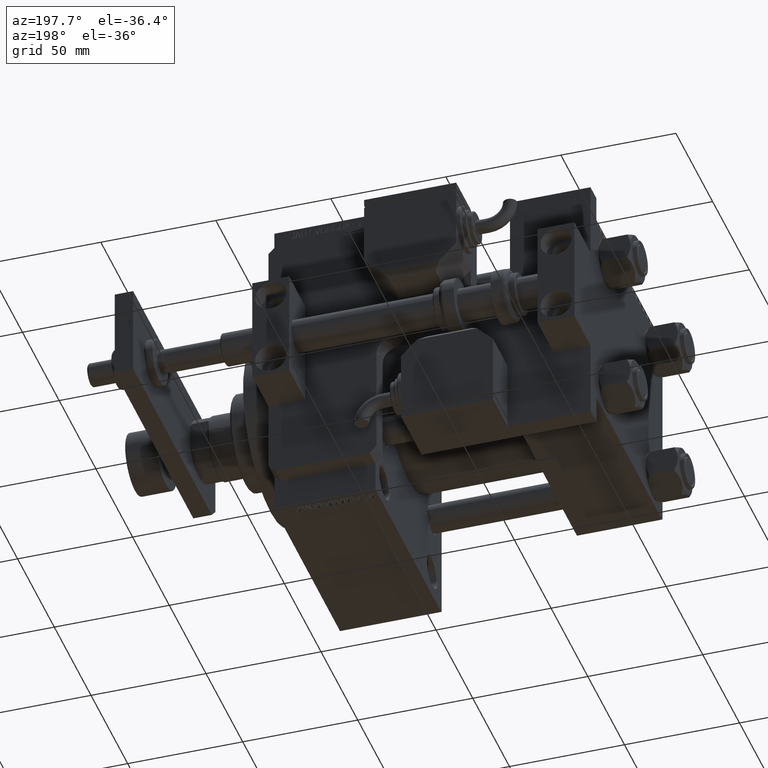
[diagram: clean part render]
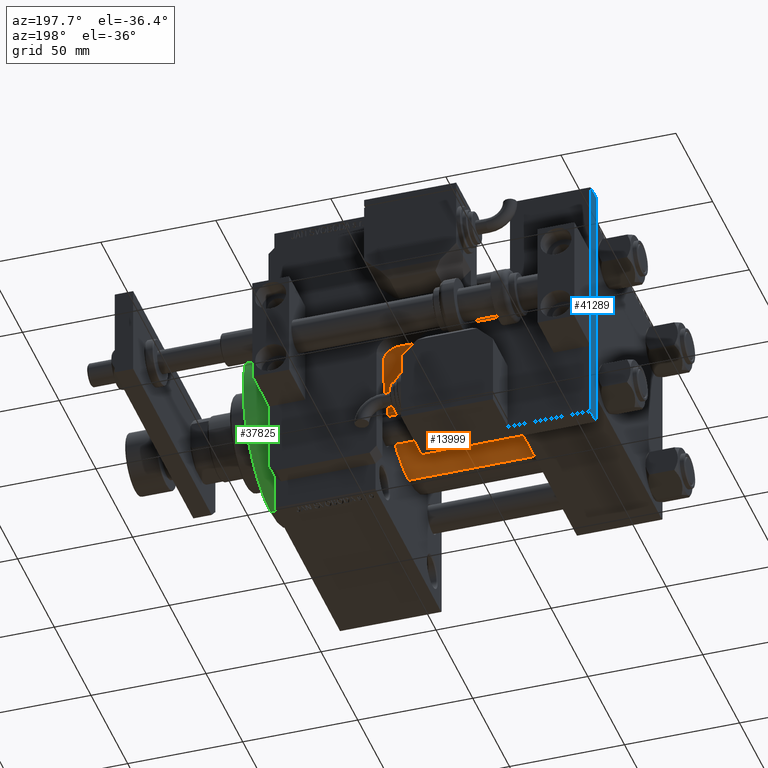
[diagram: same view with three faces highlighted in distinct colors, each labeled with its STEP entity id]
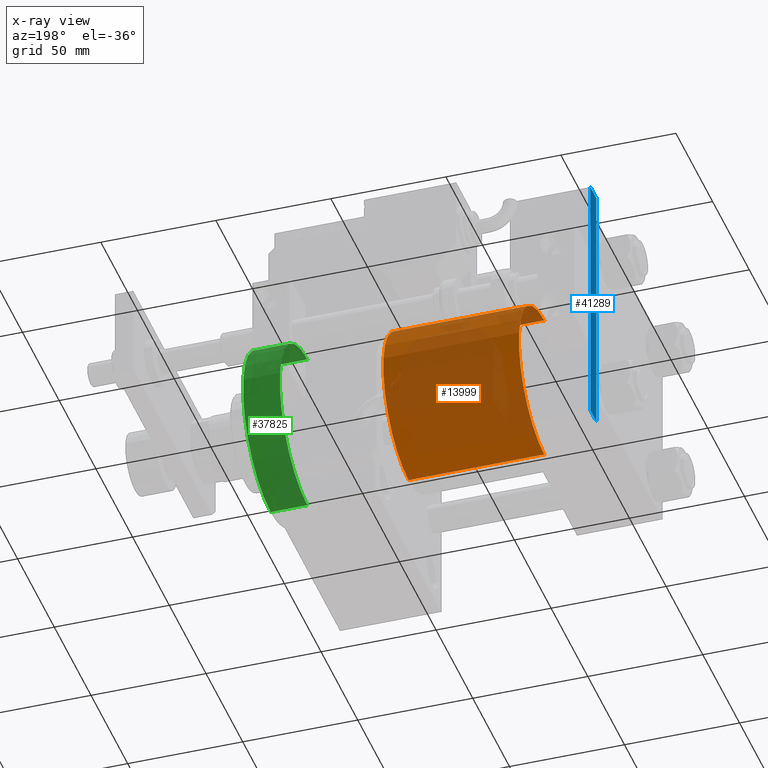
[diagram: x-ray of the same camera — body ghosted, the three highlighted faces saturated]
A machine part, auxiliary view with three faces highlighted in distinct colors.
The next image is the same camera in x-ray (body ghosted, the three faces saturated) — at least one of them is partly hidden behind the body in this view.
Their STEP definitions:

[orange] entity #13999 — the highlighted cylindrical surface (partial cylindrical patch) has radius 34.5 mm, axis along (-1, -0, -0).
#46 = CARTESIAN_POINT ( 'NONE',  ( 37.00000000000000000, -2.602085213965210642E-15, 0.000000000000000000 ) ) ;
#1644 = DIRECTION ( 'NONE',  ( 0.000000000000000000, 0.000000000000000000, 1.000000000000000000 ) ) ;
#2889 = EDGE_CURVE ( 'NONE', #26079, #46371, #37161, .T. ) ;
#3306 = EDGE_LOOP ( 'NONE', ( #26950, #51943, #44778, #4053 ) ) ;
#3994 = DIRECTION ( 'NONE',  ( 0.000000000000000000, 0.000000000000000000, 1.000000000000000000 ) ) ;
#4053 = ORIENTED_EDGE ( 'NONE', *, *, #27494, .F. ) ;
#8041 = CYLINDRICAL_SURFACE ( 'NONE', #26864, 34.50000000000000000 ) ;
#12044 = CARTESIAN_POINT ( 'NONE',  ( 96.00000000000000000, 1.622946243093158675E-15, -34.50000000000000000 ) ) ;
#12447 = DIRECTION ( 'NONE',  ( 1.000000000000000000, -0.000000000000000000, 0.000000000000000000 ) ) ;
#12635 = DIRECTION ( 'NONE',  ( -1.000000000000000000, -0.000000000000000000, -0.000000000000000000 ) ) ;
#13999 = ADVANCED_FACE ( 'NONE', ( #32908 ), #8041, .T. ) ;
#16630 = DIRECTION ( 'NONE',  ( -1.000000000000000000, -0.000000000000000000, -0.000000000000000000 ) ) ;
#19594 = LINE ( 'NONE', #20120, #43347 ) ;
#19862 = VERTEX_POINT ( 'NONE', #28505 ) ;
#20120 = CARTESIAN_POINT ( 'NONE',  ( 96.00000000000000000, -2.602085213965210642E-15, 34.50000000000000000 ) ) ;
#21366 = CARTESIAN_POINT ( 'NONE',  ( 96.00000000000000000, -2.602085213965210642E-15, 0.000000000000000000 ) ) ;
#21763 = AXIS2_PLACEMENT_3D ( 'NONE', #21366, #33801, #46455 ) ;
#25075 = CARTESIAN_POINT ( 'NONE',  ( 96.00000000000000000, -2.602085213965210642E-15, 0.000000000000000000 ) ) ;
#25838 = EDGE_CURVE ( 'NONE', #26079, #19862, #51954, .T. ) ;
#25969 = EDGE_CURVE ( 'NONE', #46371, #27084, #40719, .T. ) ;
#26079 = VERTEX_POINT ( 'NONE', #35911 ) ;
#26864 = AXIS2_PLACEMENT_3D ( 'NONE', #25075, #12635, #3994 ) ;
#26950 = ORIENTED_EDGE ( 'NONE', *, *, #25838, .F. ) ;
#27084 = VERTEX_POINT ( 'NONE', #49099 ) ;
#27403 = VECTOR ( 'NONE', #16630, 1000.000000000000000 ) ;
#27494 = EDGE_CURVE ( 'NONE', #19862, #27084, #19594, .T. ) ;
#28505 = CARTESIAN_POINT ( 'NONE',  ( 96.00000000000000000, -2.602085213965210642E-15, 34.50000000000000000 ) ) ;
#32908 = FACE_OUTER_BOUND ( 'NONE', #3306, .T. ) ;
#33801 = DIRECTION ( 'NONE',  ( 1.000000000000000000, 0.000000000000000000, 0.000000000000000000 ) ) ;
#35911 = CARTESIAN_POINT ( 'NONE',  ( 96.00000000000000000, 1.622946243093158675E-15, -34.50000000000000000 ) ) ;
#37161 = LINE ( 'NONE', #12044, #27403 ) ;
#40719 = CIRCLE ( 'NONE', #41610, 34.50000000000000000 ) ;
#41610 = AXIS2_PLACEMENT_3D ( 'NONE', #46, #12447, #1644 ) ;
#43347 = VECTOR ( 'NONE', #52784, 1000.000000000000000 ) ;
#44778 = ORIENTED_EDGE ( 'NONE', *, *, #25969, .T. ) ;
#46371 = VERTEX_POINT ( 'NONE', #53306 ) ;
#46455 = DIRECTION ( 'NONE',  ( 0.000000000000000000, 0.000000000000000000, -1.000000000000000000 ) ) ;
#49099 = CARTESIAN_POINT ( 'NONE',  ( 37.00000000000000000, -2.602085213965210642E-15, 34.50000000000000000 ) ) ;
#51943 = ORIENTED_EDGE ( 'NONE', *, *, #2889, .T. ) ;
#51954 = CIRCLE ( 'NONE', #21763, 34.50000000000000000 ) ;
#52784 = DIRECTION ( 'NONE',  ( -1.000000000000000000, -0.000000000000000000, -0.000000000000000000 ) ) ;
#53306 = CARTESIAN_POINT ( 'NONE',  ( 37.00000000000000000, 1.622946243093158675E-15, -34.50000000000000000 ) ) ;

[blue] entity #41289 — the highlighted planar face has unit normal (1, 0, 0).
#1924 = CARTESIAN_POINT ( 'NONE',  ( 0.000000000000000000, 115.0000000000000142, 0.000000000000000000 ) ) ;
#2578 = VERTEX_POINT ( 'NONE', #30207 ) ;
#3379 = VECTOR ( 'NONE', #30614, 1000.000000000000000 ) ;
#4125 = VERTEX_POINT ( 'NONE', #43875 ) ;
#6977 = EDGE_CURVE ( 'NONE', #10311, #4125, #50887, .T. ) ;
#9559 = EDGE_CURVE ( 'NONE', #10311, #2578, #50036, .T. ) ;
#9580 = DIRECTION ( 'NONE',  ( 0.000000000000000000, 1.000000000000000000, 0.000000000000000000 ) ) ;
#10311 = VERTEX_POINT ( 'NONE', #30561 ) ;
#11558 = DIRECTION ( 'NONE',  ( 0.000000000000000000, 1.000000000000000000, 0.000000000000000000 ) ) ;
#13327 = FACE_OUTER_BOUND ( 'NONE', #22196, .T. ) ;
#13735 = VECTOR ( 'NONE', #9580, 1000.000000000000000 ) ;
#15876 = ORIENTED_EDGE ( 'NONE', *, *, #6977, .F. ) ;
#15984 = EDGE_CURVE ( 'NONE', #4125, #48248, #22830, .T. ) ;
#18510 = DIRECTION ( 'NONE',  ( -0.000000000000000000, -0.000000000000000000, -1.000000000000000000 ) ) ;
#19679 = LINE ( 'NONE', #32102, #43612 ) ;
#22196 = EDGE_LOOP ( 'NONE', ( #24194, #40318, #15876, #35505 ) ) ;
#22814 = CARTESIAN_POINT ( 'NONE',  ( 0.000000000000000000, 0.000000000000000000, 8.000000000000000000 ) ) ;
#22830 = LINE ( 'NONE', #51975, #49405 ) ;
#24194 = ORIENTED_EDGE ( 'NONE', *, *, #37210, .T. ) ;
#26290 = CARTESIAN_POINT ( 'NONE',  ( 0.000000000000000000, 0.000000000000000000, 8.000000000000000000 ) ) ;
#30207 = CARTESIAN_POINT ( 'NONE',  ( 0.000000000000000000, 0.000000000000000000, 0.000000000000000000 ) ) ;
#30561 = CARTESIAN_POINT ( 'NONE',  ( 0.000000000000000000, 0.000000000000000000, 8.000000000000000000 ) ) ;
#30614 = DIRECTION ( 'NONE',  ( -0.000000000000000000, -0.000000000000000000, -1.000000000000000000 ) ) ;
#32102 = CARTESIAN_POINT ( 'NONE',  ( 0.000000000000000000, 0.000000000000000000, 0.000000000000000000 ) ) ;
#33866 = DIRECTION ( 'NONE',  ( -1.000000000000000000, 0.000000000000000000, 0.000000000000000000 ) ) ;
#35505 = ORIENTED_EDGE ( 'NONE', *, *, #9559, .T. ) ;
#37210 = EDGE_CURVE ( 'NONE', #2578, #48248, #19679, .T. ) ;
#37908 = DIRECTION ( 'NONE',  ( 0.000000000000000000, 0.000000000000000000, 1.000000000000000000 ) ) ;
#38167 = PLANE ( 'NONE',  #50702 ) ;
#40318 = ORIENTED_EDGE ( 'NONE', *, *, #15984, .F. ) ;
#41289 = ADVANCED_FACE ( 'NONE', ( #13327 ), #38167, .F. ) ;
#43612 = VECTOR ( 'NONE', #11558, 1000.000000000000000 ) ;
#43875 = CARTESIAN_POINT ( 'NONE',  ( 0.000000000000000000, 115.0000000000000142, 8.000000000000000000 ) ) ;
#48248 = VERTEX_POINT ( 'NONE', #1924 ) ;
#49405 = VECTOR ( 'NONE', #18510, 1000.000000000000000 ) ;
#50036 = LINE ( 'NONE', #26290, #3379 ) ;
#50583 = CARTESIAN_POINT ( 'NONE',  ( 0.000000000000000000, 0.000000000000000000, 8.000000000000000000 ) ) ;
#50702 = AXIS2_PLACEMENT_3D ( 'NONE', #50583, #33866, #37908 ) ;
#50887 = LINE ( 'NONE', #22814, #13735 ) ;
#51975 = CARTESIAN_POINT ( 'NONE',  ( 0.000000000000000000, 115.0000000000000142, 8.000000000000000000 ) ) ;

[green] entity #37825 — the highlighted cylindrical surface (partial cylindrical patch) has radius 37.5 mm, axis along (-1, -0, -0).
#1952 = CARTESIAN_POINT ( 'NONE',  ( 156.0000000000000284, 0.000000000000000000, 37.50000000000000711 ) ) ;
#2396 = CARTESIAN_POINT ( 'NONE',  ( 156.0000000000000284, 4.592425496802575156E-15, -37.50000000000000711 ) ) ;
#3336 = DIRECTION ( 'NONE',  ( 0.000000000000000000, 0.000000000000000000, 1.000000000000000000 ) ) ;
#4546 = EDGE_CURVE ( 'NONE', #29577, #12111, #25918, .T. ) ;
#4814 = EDGE_LOOP ( 'NONE', ( #41099, #53145, #50533, #22952 ) ) ;
#4954 = EDGE_CURVE ( 'NONE', #12111, #27096, #25769, .T. ) ;
#5457 = EDGE_CURVE ( 'NONE', #6167, #27096, #24248, .T. ) ;
#6085 = AXIS2_PLACEMENT_3D ( 'NONE', #13186, #17246, #34260 ) ;
#6167 = VERTEX_POINT ( 'NONE', #1952 ) ;
#6875 = CYLINDRICAL_SURFACE ( 'NONE', #49684, 37.50000000000000711 ) ;
#8219 = DIRECTION ( 'NONE',  ( 0.000000000000000000, 0.000000000000000000, -1.000000000000000000 ) ) ;
#12111 = VERTEX_POINT ( 'NONE', #15745 ) ;
#13186 = CARTESIAN_POINT ( 'NONE',  ( 156.0000000000000284, 0.000000000000000000, 0.000000000000000000 ) ) ;
#14286 = DIRECTION ( 'NONE',  ( -1.000000000000000000, -0.000000000000000000, -0.000000000000000000 ) ) ;
#15303 = CARTESIAN_POINT ( 'NONE',  ( 156.0000000000000284, 4.592425496802575156E-15, -37.50000000000000711 ) ) ;
#15745 = CARTESIAN_POINT ( 'NONE',  ( 140.0000000000000000, 4.592425496802575156E-15, -37.50000000000000711 ) ) ;
#17246 = DIRECTION ( 'NONE',  ( 1.000000000000000000, 0.000000000000000000, 0.000000000000000000 ) ) ;
#22713 = EDGE_CURVE ( 'NONE', #29577, #6167, #44874, .T. ) ;
#22952 = ORIENTED_EDGE ( 'NONE', *, *, #5457, .F. ) ;
#23458 = DIRECTION ( 'NONE',  ( -1.000000000000000000, -0.000000000000000000, -0.000000000000000000 ) ) ;
#24020 = VECTOR ( 'NONE', #14286, 1000.000000000000000 ) ;
#24248 = LINE ( 'NONE', #49051, #29247 ) ;
#25769 = CIRCLE ( 'NONE', #42134, 37.50000000000000711 ) ;
#25918 = LINE ( 'NONE', #2396, #24020 ) ;
#27096 = VERTEX_POINT ( 'NONE', #30839 ) ;
#27418 = CARTESIAN_POINT ( 'NONE',  ( 156.0000000000000284, 0.000000000000000000, 0.000000000000000000 ) ) ;
#28768 = DIRECTION ( 'NONE',  ( 1.000000000000000000, 0.000000000000000000, 0.000000000000000000 ) ) ;
#29247 = VECTOR ( 'NONE', #23458, 1000.000000000000000 ) ;
#29577 = VERTEX_POINT ( 'NONE', #15303 ) ;
#30839 = CARTESIAN_POINT ( 'NONE',  ( 140.0000000000000000, 0.000000000000000000, 37.50000000000000711 ) ) ;
#34260 = DIRECTION ( 'NONE',  ( 0.000000000000000000, 0.000000000000000000, -1.000000000000000000 ) ) ;
#36021 = DIRECTION ( 'NONE',  ( -1.000000000000000000, -0.000000000000000000, -0.000000000000000000 ) ) ;
#36851 = CARTESIAN_POINT ( 'NONE',  ( 140.0000000000000000, 0.000000000000000000, 0.000000000000000000 ) ) ;
#37825 = ADVANCED_FACE ( 'NONE', ( #44121 ), #6875, .T. ) ;
#41099 = ORIENTED_EDGE ( 'NONE', *, *, #22713, .F. ) ;
#42134 = AXIS2_PLACEMENT_3D ( 'NONE', #36851, #28768, #8219 ) ;
#44121 = FACE_OUTER_BOUND ( 'NONE', #4814, .T. ) ;
#44874 = CIRCLE ( 'NONE', #6085, 37.50000000000000711 ) ;
#49051 = CARTESIAN_POINT ( 'NONE',  ( 156.0000000000000284, 0.000000000000000000, 37.50000000000000711 ) ) ;
#49684 = AXIS2_PLACEMENT_3D ( 'NONE', #27418, #36021, #3336 ) ;
#50533 = ORIENTED_EDGE ( 'NONE', *, *, #4954, .T. ) ;
#53145 = ORIENTED_EDGE ( 'NONE', *, *, #4546, .T. ) ;